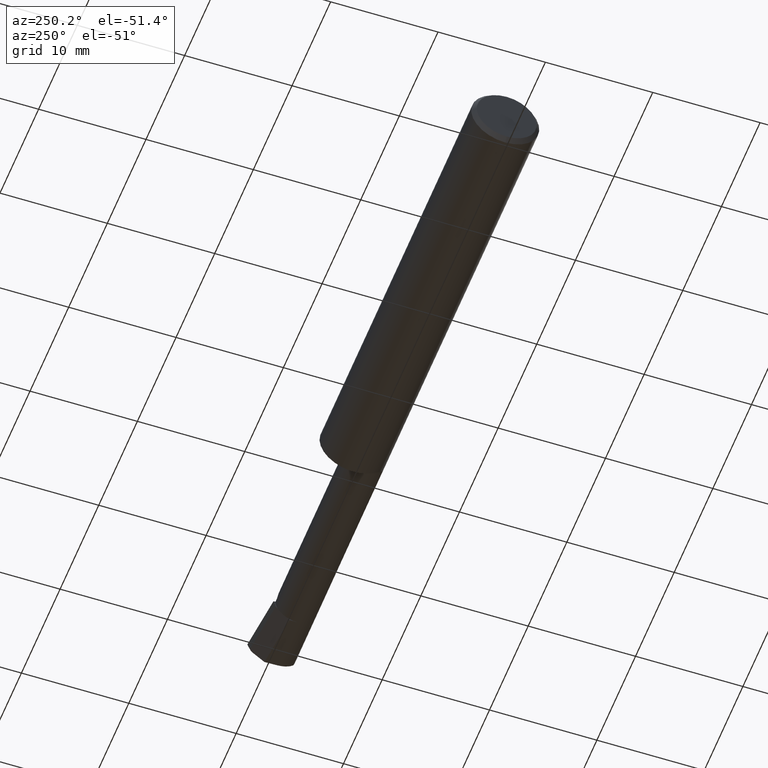
[diagram: clean part render]
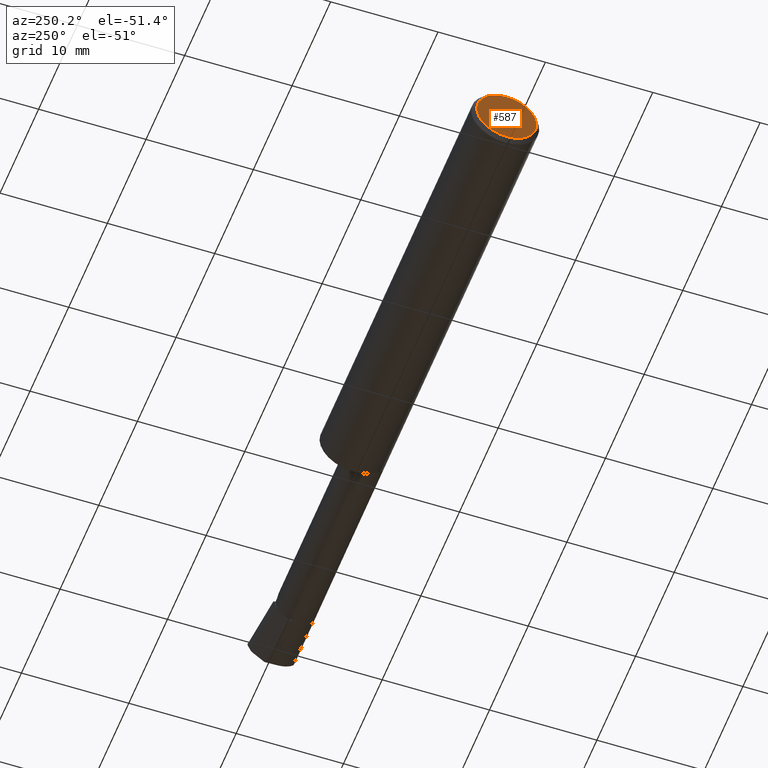
[diagram: same view with one face highlighted and labeled with its STEP entity id]
A machine part, auxiliary view. The second image highlights one B-rep face of the part: STEP entity #587.
In plain terms, the highlighted planar face has unit normal (1, 0, 0).
Its self-contained STEP definition (entity closure, byte-faithful):
#30 = AXIS2_PLACEMENT_3D ( 'NONE', #137, #205, #151 ) ;
#46 = ORIENTED_EDGE ( 'NONE', *, *, #235, .T. ) ;
#70 = CIRCLE ( 'NONE', #30, 0.1098499999999996424 ) ;
#85 = ORIENTED_EDGE ( 'NONE', *, *, #169, .T. ) ;
#137 = CARTESIAN_POINT ( 'NONE',  ( 0.0000000000000000000, 0.0000000000000000000, 0.0000000000000000000 ) ) ;
#151 = DIRECTION ( 'NONE',  ( 0.0000000000000000000, 0.0000000000000000000, 1.000000000000000000 ) ) ;
#169 = EDGE_CURVE ( 'NONE', #211, #220, #314, .T. ) ;
#171 = DIRECTION ( 'NONE',  ( 0.0000000000000000000, 0.0000000000000000000, -1.000000000000000000 ) ) ;
#205 = DIRECTION ( 'NONE',  ( -1.000000000000000000, -0.0000000000000000000, -0.0000000000000000000 ) ) ;
#211 = VERTEX_POINT ( 'NONE', #291 ) ;
#220 = VERTEX_POINT ( 'NONE', #287 ) ;
#222 = DIRECTION ( 'NONE',  ( 1.000000000000000000, 0.0000000000000000000, 0.0000000000000000000 ) ) ;
#235 = EDGE_CURVE ( 'NONE', #220, #211, #70, .T. ) ;
#287 = CARTESIAN_POINT ( 'NONE',  ( 0.0000000000000000000, 0.0000000000000000000, -0.1098499999999996424 ) ) ;
#290 = DIRECTION ( 'NONE',  ( -1.000000000000000000, -0.0000000000000000000, -0.0000000000000000000 ) ) ;
#291 = CARTESIAN_POINT ( 'NONE',  ( 0.0000000000000000000, 1.437123018799416669E-17, 0.1098499999999996424 ) ) ;
#293 = DIRECTION ( 'NONE',  ( 0.0000000000000000000, 0.0000000000000000000, 1.000000000000000000 ) ) ;
#314 = CIRCLE ( 'NONE', #411, 0.1098499999999996424 ) ;
#330 = AXIS2_PLACEMENT_3D ( 'NONE', #660, #222, #171 ) ;
#411 = AXIS2_PLACEMENT_3D ( 'NONE', #562, #290, #293 ) ;
#499 = FACE_OUTER_BOUND ( 'NONE', #570, .T. ) ;
#508 = PLANE ( 'NONE',  #330 ) ;
#562 = CARTESIAN_POINT ( 'NONE',  ( 0.0000000000000000000, 0.0000000000000000000, 0.0000000000000000000 ) ) ;
#570 = EDGE_LOOP ( 'NONE', ( #46, #85 ) ) ;
#587 = ADVANCED_FACE ( 'NONE', ( #499 ), #508, .F. ) ;
#660 = CARTESIAN_POINT ( 'NONE',  ( 0.0000000000000000000, 0.0000000000000000000, 0.0000000000000000000 ) ) ;